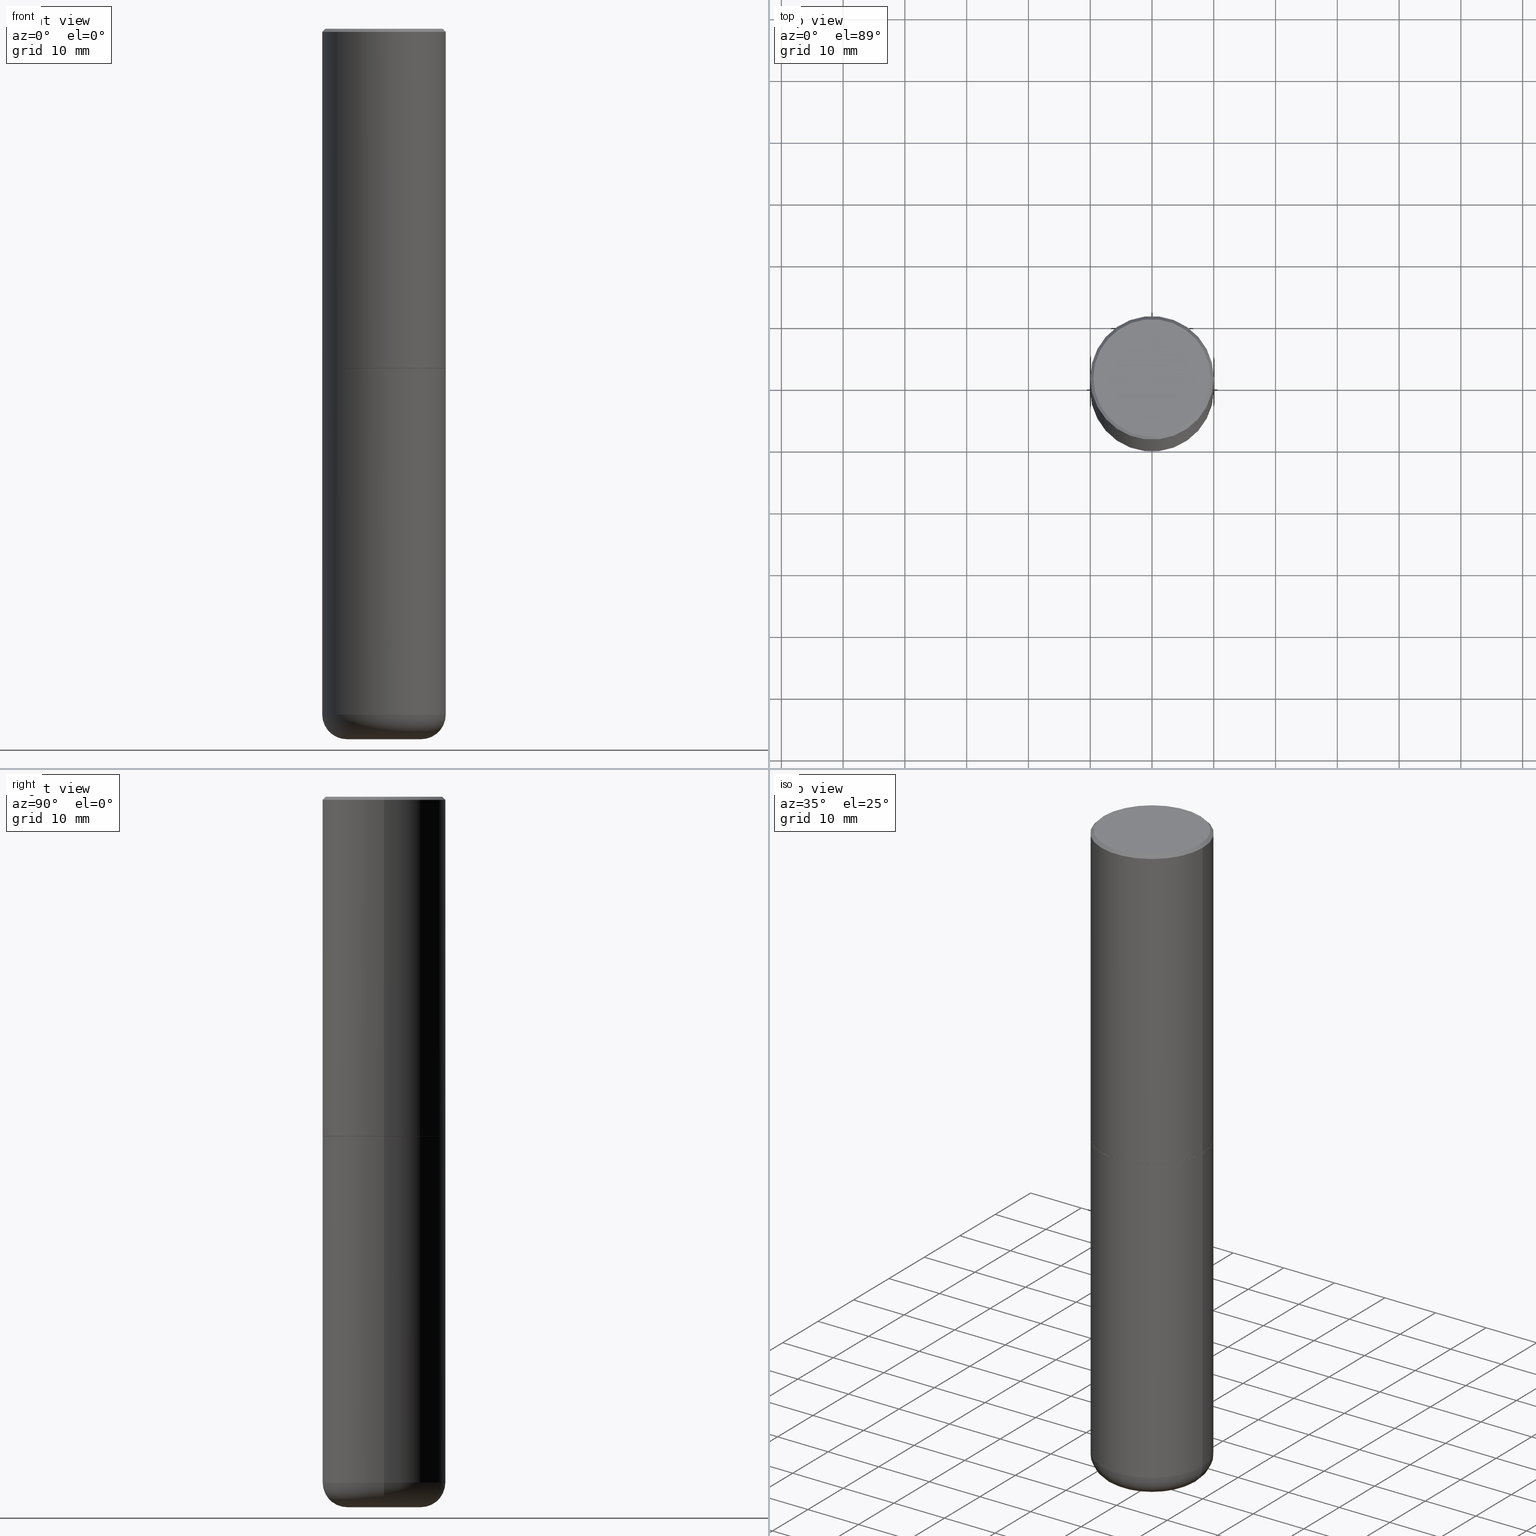
[diagram: canonical four-view strip — front | top / right | iso, engineering-drawing reading convention]
A machine part, canonical four-view strip (front | top / right | iso — engineering-drawing reading convention). The complete STEP part file that produces these views, byte-faithful:
ISO-10303-21;
HEADER;
FILE_DESCRIPTION (( 'STEP AP203' ),
    '1' );
FILE_NAME ('74838.STEP',
    '2024-05-02T19:22:48',
    ( '' ),
    ( '' ),
    'SwSTEP 2.0',
    'SolidWorks 2023',
    '' );
FILE_SCHEMA (( 'CONFIG_CONTROL_DESIGN' ));
ENDSEC;

DATA;
#1 = ORIENTED_EDGE ( 'NONE', *, *, #162, .F. ) ;
#2 = VECTOR ( 'NONE', #296, 39.37007874015748143 ) ;
#3 = DATE_AND_TIME ( #390, #241 ) ;
#4 = EDGE_LOOP ( 'NONE', ( #356, #287 ) ) ;
#5 = DIRECTION ( 'NONE',  ( 1.000000000000000000, 0.000000000000000000, 0.000000000000000000 ) ) ;
#6 = FACE_OUTER_BOUND ( 'NONE', #60, .T. ) ;
#7 = CARTESIAN_POINT ( 'NONE',  ( 0.2362000000000000210, -1.690749838334792550E-14, -4.370099999999998985 ) ) ;
#8 = AXIS2_PLACEMENT_3D ( 'NONE', #49, #311, #317 ) ;
#9 = PERSON_AND_ORGANIZATION ( #310, #116 ) ;
#10 = ADVANCED_FACE ( 'NONE', ( #78 ), #313, .F. ) ;
#11 = FACE_OUTER_BOUND ( 'NONE', #188, .T. ) ;
#12 = PERSON_AND_ORGANIZATION_ROLE ( 'classification_officer' ) ;
#13 = ORIENTED_EDGE ( 'NONE', *, *, #361, .F. ) ;
#14 = VERTEX_POINT ( 'NONE', #347 ) ;
#15 = PRODUCT ( '74838', '74838', '', ( #40 ) ) ;
#16 = CARTESIAN_POINT ( 'NONE',  ( 0.000000000000000000, 0.000000000000000000, 0.000000000000000000 ) ) ;
#17 = EDGE_CURVE ( 'NONE', #219, #58, #332, .T. ) ;
#18 = DIRECTION ( 'NONE',  ( -2.445468806185136597E-29, 3.491481338843145583E-15, 1.000000000000000000 ) ) ;
#19 = EDGE_CURVE ( 'NONE', #394, #121, #319, .T. ) ;
#20 =( LENGTH_UNIT ( ) NAMED_UNIT ( * ) SI_UNIT ( $, .METRE. ) );
#21 = CIRCLE ( 'NONE', #252, 0.3937000000000000499 ) ;
#22 = LOCAL_TIME ( 15, 22, 48.00000000000000000, #304 ) ;
#23 = DIRECTION ( 'NONE',  ( -2.445468806185136597E-29, 3.491481338843145583E-15, 1.000000000000000000 ) ) ;
#24 = DIRECTION ( 'NONE',  ( -1.000000000000000000, 6.982962677686265922E-15, -4.876176775795935793E-29 ) ) ;
#25 = EDGE_CURVE ( 'NONE', #201, #154, #379, .T. ) ;
#26 = DIRECTION ( 'NONE',  ( 2.445468806185136597E-29, -3.491481338843145583E-15, -1.000000000000000000 ) ) ;
#27 = CIRCLE ( 'NONE', #351, 0.3937000000000001054 ) ;
#28 = APPROVAL_PERSON_ORGANIZATION ( #309, #408, #273 ) ;
#29 = CARTESIAN_POINT ( 'NONE',  ( 4.890937612370294178E-31, -6.982962677686321191E-17, -0.02000000000000008715 ) ) ;
#30 = ORIENTED_EDGE ( 'NONE', *, *, #371, .F. ) ;
#31 = ORIENTED_EDGE ( 'NONE', *, *, #260, .F. ) ;
#32 = VERTEX_POINT ( 'NONE', #114 ) ;
#33 = AXIS2_PLACEMENT_3D ( 'NONE', #398, #303, #106 ) ;
#34 = ORIENTED_EDGE ( 'NONE', *, *, #361, .T. ) ;
#35 = DIRECTION ( 'NONE',  ( -1.000000000000000000, 6.982962677686265922E-15, -4.876176775795935793E-29 ) ) ;
#36 = DATE_AND_TIME ( #38, #220 ) ;
#37 = AXIS2_PLACEMENT_3D ( 'NONE', #155, #89, #5 ) ;
#38 = CALENDAR_DATE ( 2024, 2, 5 ) ;
#39 = EDGE_CURVE ( 'NONE', #154, #201, #388, .T. ) ;
#40 = MECHANICAL_CONTEXT ( 'NONE', #295, 'mechanical' ) ;
#41 = FACE_OUTER_BOUND ( 'NONE', #324, .T. ) ;
#42 = DIRECTION ( 'NONE',  ( 1.000000000000000000, -6.982962677686266711E-15, 4.876176775795935793E-29 ) ) ;
#43 = CC_DESIGN_APPROVAL ( #349, ( #340 ) ) ;
#44 = PLANE ( 'NONE',  #405 ) ;
#45 = DIRECTION ( 'NONE',  ( -2.445468806185136597E-29, 3.491481338843145583E-15, 1.000000000000000000 ) ) ;
#46 = EDGE_CURVE ( 'NONE', #121, #395, #27, .T. ) ;
#47 = DIRECTION ( 'NONE',  ( 1.000000000000000000, -6.982962677686266711E-15, 4.876176775795935793E-29 ) ) ;
#48 = ORIENTED_EDGE ( 'NONE', *, *, #17, .T. ) ;
#49 = CARTESIAN_POINT ( 'NONE',  ( 0.000000000000000000, 0.000000000000000000, 0.000000000000000000 ) ) ;
#50 = EDGE_CURVE ( 'NONE', #125, #14, #316, .T. ) ;
#51 = DIRECTION ( 'NONE',  ( 2.438088387897960049E-29, -3.491481338843145188E-15, -1.000000000000000000 ) ) ;
#52 = DIRECTION ( 'NONE',  ( 2.445468806185136597E-29, -3.491481338843145583E-15, -1.000000000000000000 ) ) ;
#53 = AXIS2_PLACEMENT_3D ( 'NONE', #342, #343, #24 ) ;
#54 = AXIS2_PLACEMENT_3D ( 'NONE', #254, #146, #247 ) ;
#55 = LINE ( 'NONE', #118, #352 ) ;
#56 = VERTEX_POINT ( 'NONE', #345 ) ;
#57 = DIRECTION ( 'NONE',  ( -2.445468806185136597E-29, 3.491481338843145583E-15, 1.000000000000000000 ) ) ;
#58 = VERTEX_POINT ( 'NONE', #237 ) ;
#59 = CC_DESIGN_DATE_AND_TIME_ASSIGNMENT ( #166, #306, ( #145 ) ) ;
#60 = EDGE_LOOP ( 'NONE', ( #119, #258, #31, #150 ) ) ;
#61 = FACE_OUTER_BOUND ( 'NONE', #290, .T. ) ;
#62 = EDGE_LOOP ( 'NONE', ( #266, #294, #354, #95 ) ) ;
#63 = PERSON_AND_ORGANIZATION_ROLE ( 'creator' ) ;
#64 = ORIENTED_EDGE ( 'NONE', *, *, #229, .T. ) ;
#65 = CONICAL_SURFACE ( 'NONE', #314, 0.3937000000000001054, 0.7853981633974453924 ) ;
#66 = ADVANCED_FACE ( 'NONE', ( #109 ), #401, .T. ) ;
#67 = DIRECTION ( 'NONE',  ( -2.445468806185136597E-29, 3.491481338843145583E-15, 1.000000000000000000 ) ) ;
#68 = CC_DESIGN_SECURITY_CLASSIFICATION ( #145, ( #279 ) ) ;
#69 = CARTESIAN_POINT ( 'NONE',  ( 5.295418152913293224E-29, -7.560453691130945845E-15, -2.165399999999999547 ) ) ;
#70 = ORIENTED_EDGE ( 'NONE', *, *, #281, .T. ) ;
#71 = PERSON_AND_ORGANIZATION ( #310, #116 ) ;
#72 =( NAMED_UNIT ( * ) SI_UNIT ( $, .STERADIAN. ) SOLID_ANGLE_UNIT ( ) );
#73 = CYLINDRICAL_SURFACE ( 'NONE', #293, 0.3937000000000001054 ) ;
#74 = DIRECTION ( 'NONE',  ( -2.445468806185136597E-29, 3.491481338843145583E-15, 1.000000000000000000 ) ) ;
#75 = LOCAL_TIME ( 15, 22, 48.00000000000000000, #265 ) ;
#76 = EDGE_CURVE ( 'NONE', #14, #191, #239, .T. ) ;
#77 = DIRECTION ( 'NONE',  ( -2.445468806185136597E-29, 3.491481338843145583E-15, 1.000000000000000000 ) ) ;
#78 = FACE_OUTER_BOUND ( 'NONE', #4, .T. ) ;
#79 = DIRECTION ( 'NONE',  ( 1.000000000000000000, -6.982962677686266711E-15, 0.000000000000000000 ) ) ;
#80 = VECTOR ( 'NONE', #96, 39.37007874015748143 ) ;
#81 = TOROIDAL_SURFACE ( 'NONE', #327, 0.2362000000000000210, 0.1575000000000000844 ) ;
#82 = CARTESIAN_POINT ( 'NONE',  ( 4.890937612370294178E-31, -6.982962677686321191E-17, -0.02000000000000008715 ) ) ;
#83 = DIRECTION ( 'NONE',  ( 1.000000000000000000, -6.982962677686268288E-15, 0.000000000000000000 ) ) ;
#84 = ORIENTED_EDGE ( 'NONE', *, *, #19, .F. ) ;
#85 = APPROVAL_PERSON_ORGANIZATION ( #261, #349, #399 ) ;
#86 = ADVANCED_FACE ( 'NONE', ( #138 ), #367, .F. ) ;
#87 = DIRECTION ( 'NONE',  ( -1.000000000000000000, 6.982962677686266711E-15, 0.000000000000000000 ) ) ;
#88 = EDGE_LOOP ( 'NONE', ( #325, #267, #328, #216 ) ) ;
#89 = DIRECTION ( 'NONE',  ( 0.000000000000000000, 0.000000000000000000, 1.000000000000000000 ) ) ;
#90 = DIRECTION ( 'NONE',  ( 1.000000000000000000, -6.982962677686261977E-15, 4.883557194083110659E-29 ) ) ;
#91 = EDGE_LOOP ( 'NONE', ( #377, #1 ) ) ;
#92 = COORDINATED_UNIVERSAL_TIME_OFFSET ( 5, 0, .BEHIND. ) ;
#93 = ADVANCED_BREP_SHAPE_REPRESENTATION ( '74838', ( #110, #206, #37 ), #193 ) ;
#94 = DIRECTION ( 'NONE',  ( -1.000000000000000000, 6.982962677686266711E-15, 0.000000000000000000 ) ) ;
#95 = ORIENTED_EDGE ( 'NONE', *, *, #50, .F. ) ;
#96 = DIRECTION ( 'NONE',  ( -0.7071067811866199593, 7.493145998870616062E-15, 0.7071067811864750752 ) ) ;
#97 = APPROVAL_PERSON_ORGANIZATION ( #160, #232, #107 ) ;
#98 = DIRECTION ( 'NONE',  ( -2.445468806185136597E-29, 3.491481338843145583E-15, 1.000000000000000000 ) ) ;
#99 = PERSON_AND_ORGANIZATION ( #310, #116 ) ;
#100 = DIRECTION ( 'NONE',  ( 2.438088387897960049E-29, -3.491481338843145188E-15, -1.000000000000000000 ) ) ;
#101 = ORIENTED_EDGE ( 'NONE', *, *, #282, .F. ) ;
#102 = VECTOR ( 'NONE', #278, 39.37007874015748143 ) ;
#103 = APPROVAL_DATE_TIME ( #396, #408 ) ;
#104 = AXIS2_PLACEMENT_3D ( 'NONE', #415, #57, #348 ) ;
#105 =( NAMED_UNIT ( * ) PLANE_ANGLE_UNIT ( ) SI_UNIT ( $, .RADIAN. ) );
#106 = DIRECTION ( 'NONE',  ( 1.000000000000000000, -6.982962677686266711E-15, 0.000000000000000000 ) ) ;
#107 = APPROVAL_ROLE ( '' ) ;
#108 = LINE ( 'NONE', #175, #374 ) ;
#109 = FACE_OUTER_BOUND ( 'NONE', #285, .T. ) ;
#110 = MANIFOLD_SOLID_BREP ( 'Body-Move/Copy2[1]', #270 ) ;
#111 = AXIS2_PLACEMENT_3D ( 'NONE', #221, #257, #83 ) ;
#112 = CARTESIAN_POINT ( 'NONE',  ( 0.3926999999999999935, -1.030266313465834305E-14, -2.165399999999999547 ) ) ;
#113 = EDGE_CURVE ( 'NONE', #56, #32, #21, .T. ) ;
#114 = CARTESIAN_POINT ( 'NONE',  ( 0.3937000000000000499, -1.030964609733602906E-14, -2.165399999999999547 ) ) ;
#115 = CARTESIAN_POINT ( 'NONE',  ( 5.295418152913293224E-29, -7.560453691130945845E-15, -2.165399999999999547 ) ) ;
#116 = ORGANIZATION ( 'UNSPECIFIED', 'UNSPECIFIED', '' ) ;
#117 = DIRECTION ( 'NONE',  ( 1.000000000000000000, -6.982962677686265133E-15, 0.000000000000000000 ) ) ;
#118 = CARTESIAN_POINT ( 'NONE',  ( -0.3937000000000001054, 2.679362779428220707E-15, -0.02000000000000008715 ) ) ;
#119 = ORIENTED_EDGE ( 'NONE', *, *, #298, .T. ) ;
#120 = ADVANCED_FACE ( 'NONE', ( #375 ), #280, .T. ) ;
#121 = VERTEX_POINT ( 'NONE', #176 ) ;
#122 = CONICAL_SURFACE ( 'NONE', #291, 0.3926999999999999935, 0.7853981633975507526 ) ;
#123 = TOROIDAL_SURFACE ( 'NONE', #272, 0.2362000000000000210, 0.1575000000000000844 ) ;
#124 = CARTESIAN_POINT ( 'NONE',  ( 1.068694322990966450E-28, -1.525812259887842897E-14, -4.370099999999998985 ) ) ;
#125 = VERTEX_POINT ( 'NONE', #283 ) ;
#126 = ADVANCED_FACE ( 'NONE', ( #142 ), #122, .T. ) ;
#127 = ORIENTED_EDGE ( 'NONE', *, *, #39, .F. ) ;
#128 = EDGE_CURVE ( 'NONE', #14, #219, #139, .T. ) ;
#129 = LINE ( 'NONE', #387, #80 ) ;
#130 = PERSON_AND_ORGANIZATION_ROLE ( 'design_owner' ) ;
#131 = VECTOR ( 'NONE', #312, 39.37007874015748143 ) ;
#132 = CIRCLE ( 'NONE', #104, 0.3926999999999999935 ) ;
#133 = EDGE_LOOP ( 'NONE', ( #127, #161, #48, #151 ) ) ;
#134 = EDGE_LOOP ( 'NONE', ( #382, #336, #301, #13 ) ) ;
#135 = CARTESIAN_POINT ( 'NONE',  ( 1.068694322990966450E-28, -1.525812259887842897E-14, -4.370099999999998985 ) ) ;
#136 = CALENDAR_DATE ( 2024, 2, 5 ) ;
#137 = DIRECTION ( 'NONE',  ( 1.000000000000000000, -6.982962677686266711E-15, 4.877734241229876808E-29 ) ) ;
#138 = FACE_OUTER_BOUND ( 'NONE', #373, .T. ) ;
#139 = LINE ( 'NONE', #245, #102 ) ;
#140 = CONICAL_SURFACE ( 'NONE', #320, 0.3937000000000001054, 0.7853981633974453924 ) ;
#141 = CARTESIAN_POINT ( 'NONE',  ( 5.295418152913293224E-29, -7.560453691130945845E-15, -2.165399999999999547 ) ) ;
#142 = FACE_OUTER_BOUND ( 'NONE', #418, .T. ) ;
#143 = CARTESIAN_POINT ( 'NONE',  ( 0.3937000000000001054, -2.749192406205084005E-15, 1.919750796630860452E-29 ) ) ;
#144 = AXIS2_PLACEMENT_3D ( 'NONE', #82, #23, #79 ) ;
#145 = SECURITY_CLASSIFICATION ( '', '', #170 ) ;
#146 = DIRECTION ( 'NONE',  ( -2.445468806185136597E-29, 3.491481338843145583E-15, 1.000000000000000000 ) ) ;
#147 = ORIENTED_EDGE ( 'NONE', *, *, #50, .T. ) ;
#148 = ADVANCED_FACE ( 'NONE', ( #406 ), #262, .T. ) ;
#149 = CARTESIAN_POINT ( 'NONE',  ( -0.3937000000000002720, -1.015989167596965718E-15, -2.164399999999999658 ) ) ;
#150 = ORIENTED_EDGE ( 'NONE', *, *, #281, .F. ) ;
#151 = ORIENTED_EDGE ( 'NONE', *, *, #229, .F. ) ;
#152 = AXIS2_PLACEMENT_3D ( 'NONE', #223, #417, #355 ) ;
#153 = CARTESIAN_POINT ( 'NONE',  ( 1.107210456688382298E-28, -1.580803090974622389E-14, -4.527599999999999625 ) ) ;
#154 = VERTEX_POINT ( 'NONE', #381 ) ;
#155 = CARTESIAN_POINT ( 'NONE',  ( 0.000000000000000000, 0.000000000000000000, 0.000000000000000000 ) ) ;
#156 = EDGE_LOOP ( 'NONE', ( #84, #227, #70, #251 ) ) ;
#157 = DESIGN_CONTEXT ( 'detailed design', #236, 'design' ) ;
#158 = DATE_TIME_ROLE ( 'creation_date' ) ;
#159 = CIRCLE ( 'NONE', #369, 0.1575000000000000566 ) ;
#160 = PERSON_AND_ORGANIZATION ( #310, #116 ) ;
#161 = ORIENTED_EDGE ( 'NONE', *, *, #302, .T. ) ;
#162 = EDGE_CURVE ( 'NONE', #394, #186, #397, .T. ) ;
#163 = DIRECTION ( 'NONE',  ( 1.000000000000000000, -6.982962677686266711E-15, 4.876176775795935793E-29 ) ) ;
#164 = APPROVAL_STATUS ( 'not_yet_approved' ) ;
#165 = DIRECTION ( 'NONE',  ( -6.982962677686266711E-15, -1.000000000000000000, 3.491481338843145583E-15 ) ) ;
#166 = DATE_AND_TIME ( #136, #22 ) ;
#167 = EDGE_CURVE ( 'NONE', #191, #14, #360, .T. ) ;
#168 = CARTESIAN_POINT ( 'NONE',  ( -0.2362000000000000766, -1.329522240803589203E-14, -4.527599999999999625 ) ) ;
#169 = AXIS2_PLACEMENT_3D ( 'NONE', #318, #413, #117 ) ;
#170 = SECURITY_CLASSIFICATION_LEVEL ( 'unclassified' ) ;
#171 = CARTESIAN_POINT ( 'NONE',  ( -0.3926999999999999935, -4.764853913452808876E-15, -2.165399999999999547 ) ) ;
#172 = DIRECTION ( 'NONE',  ( -1.000000000000000000, 7.105427357601006592E-15, 0.000000000000000000 ) ) ;
#173 = LENGTH_MEASURE_WITH_UNIT ( LENGTH_MEASURE( 0.02539999999999999897 ), #20 );
#174 = DIRECTION ( 'NONE',  ( -1.000000000000000000, 6.982962677686265922E-15, -4.876176775795935793E-29 ) ) ;
#175 = CARTESIAN_POINT ( 'NONE',  ( -0.3937000000000002164, 2.797406750687515970E-15, -1.936584745033357576E-29 ) ) ;
#176 = CARTESIAN_POINT ( 'NONE',  ( -0.3937000000000001054, -1.246071584819091497E-14, -4.370099999999998985 ) ) ;
#177 = AXIS2_PLACEMENT_3D ( 'NONE', #209, #409, #172 ) ;
#178 = VECTOR ( 'NONE', #284, 39.37007874015748143 ) ;
#179 = DIRECTION ( 'NONE',  ( 1.000000000000000000, -6.982962677686265133E-15, 0.000000000000000000 ) ) ;
#180 = ADVANCED_FACE ( 'NONE', ( #61 ), #65, .T. ) ;
#181 = CARTESIAN_POINT ( 'NONE',  ( 1.068694322990966450E-28, -1.525812259887842897E-14, -4.370099999999998985 ) ) ;
#182 = EDGE_CURVE ( 'NONE', #416, #125, #389, .T. ) ;
#183 = AXIS2_PLACEMENT_3D ( 'NONE', #411, #372, #274 ) ;
#184 = CIRCLE ( 'NONE', #210, 0.2362000000000000766 ) ;
#185 = DIRECTION ( 'NONE',  ( -0.7071067811865454633, 2.468850131082235367E-15, -0.7071067811865495711 ) ) ;
#186 = VERTEX_POINT ( 'NONE', #250 ) ;
#187 = FACE_OUTER_BOUND ( 'NONE', #133, .T. ) ;
#188 = EDGE_LOOP ( 'NONE', ( #101, #350, #255, #230 ) ) ;
#189 = PERSON_AND_ORGANIZATION ( #310, #116 ) ;
#190 = DIRECTION ( 'NONE',  ( 1.000000000000000000, -6.982962677686262766E-15, 0.000000000000000000 ) ) ;
#191 = VERTEX_POINT ( 'NONE', #149 ) ;
#192 = COORDINATED_UNIVERSAL_TIME_OFFSET ( 5, 0, .BEHIND. ) ;
#193 =( GEOMETRIC_REPRESENTATION_CONTEXT ( 3 ) GLOBAL_UNCERTAINTY_ASSIGNED_CONTEXT ( ( #288 ) ) GLOBAL_UNIT_ASSIGNED_CONTEXT ( ( #407, #105, #72 ) ) REPRESENTATION_CONTEXT ( 'NONE', 'WORKASPACE' ) );
#194 = ORIENTED_EDGE ( 'NONE', *, *, #182, .T. ) ;
#195 = ADVANCED_FACE ( 'NONE', ( #187 ), #140, .T. ) ;
#196 = DIRECTION ( 'NONE',  ( -2.445468806185136597E-29, 3.491481338843145583E-15, 1.000000000000000000 ) ) ;
#197 = DIRECTION ( 'NONE',  ( 0.7071067811865454633, -7.319954787623248157E-15, -0.7071067811865495711 ) ) ;
#198 = ADVANCED_FACE ( 'NONE', ( #353 ), #123, .T. ) ;
#199 = DIRECTION ( 'NONE',  ( 1.000000000000000000, -6.982962677686262766E-15, 0.000000000000000000 ) ) ;
#200 = CC_DESIGN_APPROVAL ( #232, ( #279 ) ) ;
#201 = VERTEX_POINT ( 'NONE', #218 ) ;
#202 = LINE ( 'NONE', #271, #231 ) ;
#203 = EDGE_CURVE ( 'NONE', #125, #416, #132, .T. ) ;
#204 = EDGE_CURVE ( 'NONE', #395, #32, #226, .T. ) ;
#205 = DIRECTION ( 'NONE',  ( -2.445468806185136877E-29, 3.491481338843145188E-15, 1.000000000000000000 ) ) ;
#206 = MANIFOLD_SOLID_BREP ( 'Body-Move/Copy2[2]', #338 ) ;
#207 = DIRECTION ( 'NONE',  ( -2.445468806185136597E-29, 3.491481338843145583E-15, 1.000000000000000000 ) ) ;
#208 = AXIS2_PLACEMENT_3D ( 'NONE', #244, #77, #341 ) ;
#209 = CARTESIAN_POINT ( 'NONE',  ( -0.2362000000000000210, -1.357982065701307100E-14, -4.370099999999998985 ) ) ;
#210 = AXIS2_PLACEMENT_3D ( 'NONE', #330, #67, #199 ) ;
#211 = CARTESIAN_POINT ( 'NONE',  ( 5.295418152913293224E-29, -7.560453691130945845E-15, -2.165399999999999547 ) ) ;
#212 = CARTESIAN_POINT ( 'NONE',  ( 0.000000000000000000, 0.000000000000000000, 0.000000000000000000 ) ) ;
#213 = CC_DESIGN_PERSON_AND_ORGANIZATION_ASSIGNMENT ( #99, #299, ( #279 ) ) ;
#214 = DIRECTION ( 'NONE',  ( -2.445468806185136597E-29, 3.491481338843145583E-15, 1.000000000000000000 ) ) ;
#215 = AXIS2_PLACEMENT_3D ( 'NONE', #153, #358, #190 ) ;
#216 = ORIENTED_EDGE ( 'NONE', *, *, #128, .F. ) ;
#217 = EDGE_CURVE ( 'NONE', #32, #56, #380, .T. ) ;
#218 = CARTESIAN_POINT ( 'NONE',  ( -0.3736999999999999211, 2.644447966039789453E-15, 2.262311619753034352E-16 ) ) ;
#219 = VERTEX_POINT ( 'NONE', #376 ) ;
#220 = LOCAL_TIME ( 15, 22, 48.00000000000000000, #192 ) ;
#221 = CARTESIAN_POINT ( 'NONE',  ( 5.295418152913293224E-29, -7.560453691130945845E-15, -2.165399999999999547 ) ) ;
#222 = ORIENTED_EDGE ( 'NONE', *, *, #25, .F. ) ;
#223 = CARTESIAN_POINT ( 'NONE',  ( 5.292972684107107621E-29, -7.556962209792102838E-15, -2.164399999999999658 ) ) ;
#224 = ORIENTED_EDGE ( 'NONE', *, *, #260, .T. ) ;
#225 = PERSON_AND_ORGANIZATION ( #310, #116 ) ;
#226 = LINE ( 'NONE', #143, #178 ) ;
#227 = ORIENTED_EDGE ( 'NONE', *, *, #162, .T. ) ;
#228 = FACE_OUTER_BOUND ( 'NONE', #88, .T. ) ;
#229 = EDGE_CURVE ( 'NONE', #201, #58, #55, .T. ) ;
#230 = ORIENTED_EDGE ( 'NONE', *, *, #113, .F. ) ;
#231 = VECTOR ( 'NONE', #197, 39.37007874015748143 ) ;
#232 = APPROVAL ( #164, 'UNSPECIFIED' ) ;
#233 = DIRECTION ( 'NONE',  ( -2.438088387897960049E-29, 3.491481338843145188E-15, 1.000000000000000000 ) ) ;
#234 = CARTESIAN_POINT ( 'NONE',  ( -0.3937000000000001054, 2.797406750687515181E-15, -1.936584745033357016E-29 ) ) ;
#235 = DATE_AND_TIME ( #402, #339 ) ;
#236 = APPLICATION_CONTEXT ( 'configuration controlled 3d designs of mechanical parts and assemblies' ) ;
#237 = CARTESIAN_POINT ( 'NONE',  ( -0.3937000000000001054, 2.679362779428220707E-15, -0.02000000000000008715 ) ) ;
#238 = DIRECTION ( 'NONE',  ( 1.000000000000000000, -6.982962677686265922E-15, 4.876176775795935793E-29 ) ) ;
#239 = CIRCLE ( 'NONE', #183, 0.3937000000000002720 ) ;
#240 = DIRECTION ( 'NONE',  ( 1.000000000000000000, -6.982962677686268288E-15, 0.000000000000000000 ) ) ;
#241 = LOCAL_TIME ( 15, 22, 48.00000000000000000, #92 ) ;
#242 = CC_DESIGN_PERSON_AND_ORGANIZATION_ASSIGNMENT ( #9, #12, ( #145 ) ) ;
#243 = DIRECTION ( 'NONE',  ( 1.000000000000000000, -6.982962677686261977E-15, 0.000000000000000000 ) ) ;
#244 = CARTESIAN_POINT ( 'NONE',  ( -5.532412495976664402E-45, 7.898818803016371119E-31, 2.262311619753217762E-16 ) ) ;
#245 = CARTESIAN_POINT ( 'NONE',  ( 0.3937000000000002164, -2.749192406205084794E-15, 1.919750796630861012E-29 ) ) ;
#246 = ADVANCED_FACE ( 'NONE', ( #286 ), #248, .T. ) ;
#247 = DIRECTION ( 'NONE',  ( 1.000000000000000000, -6.982962677686268288E-15, 0.000000000000000000 ) ) ;
#248 = PLANE ( 'NONE',  #346 ) ;
#249 = ORIENTED_EDGE ( 'NONE', *, *, #167, .F. ) ;
#250 = CARTESIAN_POINT ( 'NONE',  ( 0.2362000000000000766, -1.745740669421572042E-14, -4.527599999999999625 ) ) ;
#251 = ORIENTED_EDGE ( 'NONE', *, *, #46, .F. ) ;
#252 = AXIS2_PLACEMENT_3D ( 'NONE', #141, #18, #179 ) ;
#253 = CC_DESIGN_APPROVAL ( #408, ( #145 ) ) ;
#254 = CARTESIAN_POINT ( 'NONE',  ( 5.295418152913293224E-29, -7.560453691130945845E-15, -2.165399999999999547 ) ) ;
#255 = ORIENTED_EDGE ( 'NONE', *, *, #204, .T. ) ;
#256 = APPROVAL_DATE_TIME ( #3, #349 ) ;
#257 = DIRECTION ( 'NONE',  ( -2.445468806185136597E-29, 3.491481338843145583E-15, 1.000000000000000000 ) ) ;
#258 = ORIENTED_EDGE ( 'NONE', *, *, #19, .T. ) ;
#259 = DIRECTION ( 'NONE',  ( -2.445468806185136597E-29, 3.491481338843145583E-15, 1.000000000000000000 ) ) ;
#260 = EDGE_CURVE ( 'NONE', #395, #121, #307, .T. ) ;
#261 = PERSON_AND_ORGANIZATION ( #310, #116 ) ;
#262 = CONICAL_SURFACE ( 'NONE', #54, 0.3926999999999999935, 0.7853981633975507526 ) ;
#263 = DIRECTION ( 'NONE',  ( 1.000000000000000000, -6.982962677686259611E-15, 0.000000000000000000 ) ) ;
#264 = CARTESIAN_POINT ( 'NONE',  ( 0.000000000000000000, 0.000000000000000000, 0.000000000000000000 ) ) ;
#265 = COORDINATED_UNIVERSAL_TIME_OFFSET ( 5, 0, .BEHIND. ) ;
#266 = ORIENTED_EDGE ( 'NONE', *, *, #203, .T. ) ;
#267 = ORIENTED_EDGE ( 'NONE', *, *, #410, .T. ) ;
#268 = DIRECTION ( 'NONE',  ( 1.000000000000000000, -6.982962677686261977E-15, 4.883557194083110659E-29 ) ) ;
#269 = APPROVAL_STATUS ( 'not_yet_approved' ) ;
#270 = CLOSED_SHELL ( 'NONE', ( #66, #366, #10, #357, #198, #246 ) ) ;
#271 = CARTESIAN_POINT ( 'NONE',  ( 0.3937000000000001054, -2.770807688499516128E-15, -0.02000000000000008715 ) ) ;
#272 = AXIS2_PLACEMENT_3D ( 'NONE', #124, #323, #90 ) ;
#273 = APPROVAL_ROLE ( '' ) ;
#274 = DIRECTION ( 'NONE',  ( 1.000000000000000000, -6.982962677686269077E-15, 0.000000000000000000 ) ) ;
#275 = ORIENTED_EDGE ( 'NONE', *, *, #39, .T. ) ;
#276 = CC_DESIGN_PERSON_AND_ORGANIZATION_ASSIGNMENT ( #225, #63, ( #340 ) ) ;
#277 = ORIENTED_EDGE ( 'NONE', *, *, #182, .F. ) ;
#278 = DIRECTION ( 'NONE',  ( -2.445468806185136877E-29, 3.491481338843145188E-15, 1.000000000000000000 ) ) ;
#279 = PRODUCT_DEFINITION_FORMATION_WITH_SPECIFIED_SOURCE ( 'ANY', '', #15, .NOT_KNOWN. ) ;
#280 = CYLINDRICAL_SURFACE ( 'NONE', #326, 0.3937000000000002164 ) ;
#281 = EDGE_CURVE ( 'NONE', #186, #395, #159, .T. ) ;
#282 = EDGE_CURVE ( 'NONE', #121, #56, #305, .T. ) ;
#283 = CARTESIAN_POINT ( 'NONE',  ( 0.3926999999999999935, -1.030266313465834305E-14, -2.165399999999999547 ) ) ;
#284 = DIRECTION ( 'NONE',  ( -2.445468806185136877E-29, 3.491481338843145188E-15, 1.000000000000000000 ) ) ;
#285 = EDGE_LOOP ( 'NONE', ( #224, #297, #363, #359 ) ) ;
#286 = FACE_OUTER_BOUND ( 'NONE', #91, .T. ) ;
#287 = ORIENTED_EDGE ( 'NONE', *, *, #113, .T. ) ;
#288 = UNCERTAINTY_MEASURE_WITH_UNIT (LENGTH_MEASURE( 1.000000000000000082E-05 ), #407, 'distance_accuracy_value', 'NONE');
#289 = CC_DESIGN_PERSON_AND_ORGANIZATION_ASSIGNMENT ( #189, #130, ( #15 ) ) ;
#290 = EDGE_LOOP ( 'NONE', ( #378, #222, #64, #34 ) ) ;
#291 = AXIS2_PLACEMENT_3D ( 'NONE', #115, #403, #240 ) ;
#292 = APPLICATION_PROTOCOL_DEFINITION ( 'international standard', 'config_control_design', 1994, #236 ) ;
#293 = AXIS2_PLACEMENT_3D ( 'NONE', #264, #98, #163 ) ;
#294 = ORIENTED_EDGE ( 'NONE', *, *, #371, .T. ) ;
#295 = APPLICATION_CONTEXT ( 'configuration controlled 3d designs of mechanical parts and assemblies' ) ;
#296 = DIRECTION ( 'NONE',  ( -2.445468806185136877E-29, 3.491481338843145188E-15, 1.000000000000000000 ) ) ;
#297 = ORIENTED_EDGE ( 'NONE', *, *, #282, .T. ) ;
#298 = EDGE_CURVE ( 'NONE', #186, #394, #184, .T. ) ;
#299 = PERSON_AND_ORGANIZATION_ROLE ( 'design_supplier' ) ;
#300 = APPROVAL_DATE_TIME ( #235, #232 ) ;
#301 = ORIENTED_EDGE ( 'NONE', *, *, #128, .T. ) ;
#302 = EDGE_CURVE ( 'NONE', #154, #219, #202, .T. ) ;
#303 = DIRECTION ( 'NONE',  ( -2.445468806185136597E-29, 3.491481338843145583E-15, 1.000000000000000000 ) ) ;
#304 = COORDINATED_UNIVERSAL_TIME_OFFSET ( 5, 0, .BEHIND. ) ;
#305 = LINE ( 'NONE', #234, #2 ) ;
#306 = DATE_TIME_ROLE ( 'classification_date' ) ;
#307 = CIRCLE ( 'NONE', #362, 0.3937000000000001054 ) ;
#308 = CARTESIAN_POINT ( 'NONE',  ( 0.3937000000000001054, -1.800731500508351219E-14, -4.370099999999998985 ) ) ;
#309 = PERSON_AND_ORGANIZATION ( #310, #116 ) ;
#310 = PERSON ( 'UNSPECIFIED', 'UNSPECIFIED', 'UNSPECIFIED', ('UNSPECIFIED'), ('UNSPECIFIED'), ('UNSPECIFIED') ) ;
#311 = DIRECTION ( 'NONE',  ( -2.445468806185136597E-29, 3.491481338843145583E-15, 1.000000000000000000 ) ) ;
#312 = DIRECTION ( 'NONE',  ( 0.7071067811866199593, -2.468850131083015945E-15, 0.7071067811864750752 ) ) ;
#313 = PLANE ( 'NONE',  #404 ) ;
#314 = AXIS2_PLACEMENT_3D ( 'NONE', #29, #52, #87 ) ;
#315 = CC_DESIGN_DATE_AND_TIME_ASSIGNMENT ( #36, #158, ( #340 ) ) ;
#316 = LINE ( 'NONE', #112, #131 ) ;
#317 = DIRECTION ( 'NONE',  ( 1.000000000000000000, -6.982962677686266711E-15, 4.876176775795935793E-29 ) ) ;
#318 = CARTESIAN_POINT ( 'NONE',  ( 5.295418152913293224E-29, -7.560453691130945845E-15, -2.165399999999999547 ) ) ;
#319 = CIRCLE ( 'NONE', #177, 0.1575000000000000566 ) ;
#320 = AXIS2_PLACEMENT_3D ( 'NONE', #385, #26, #94 ) ;
#321 = ORIENTED_EDGE ( 'NONE', *, *, #25, .T. ) ;
#322 = CC_DESIGN_PERSON_AND_ORGANIZATION_ASSIGNMENT ( #71, #365, ( #279 ) ) ;
#323 = DIRECTION ( 'NONE',  ( -2.445468806185136597E-29, 3.491481338843145583E-15, 1.000000000000000000 ) ) ;
#324 = EDGE_LOOP ( 'NONE', ( #386, #277 ) ) ;
#325 = ORIENTED_EDGE ( 'NONE', *, *, #76, .T. ) ;
#326 = AXIS2_PLACEMENT_3D ( 'NONE', #212, #45, #47 ) ;
#327 = AXIS2_PLACEMENT_3D ( 'NONE', #135, #259, #268 ) ;
#328 = ORIENTED_EDGE ( 'NONE', *, *, #17, .F. ) ;
#329 = APPLICATION_PROTOCOL_DEFINITION ( 'international standard', 'config_control_design', 1994, #295 ) ;
#330 = CARTESIAN_POINT ( 'NONE',  ( 1.107210456688382298E-28, -1.580803090974622389E-14, -4.527599999999999625 ) ) ;
#331 = CARTESIAN_POINT ( 'NONE',  ( 1.068694322990966450E-28, -1.525812259887842897E-14, -4.370099999999998985 ) ) ;
#332 = CIRCLE ( 'NONE', #144, 0.3937000000000001054 ) ;
#333 = AXIS2_PLACEMENT_3D ( 'NONE', #16, #207, #42 ) ;
#334 = PRODUCT_DEFINITION_SHAPE ( 'NONE', 'NONE',  #340 ) ;
#335 = PRODUCT_RELATED_PRODUCT_CATEGORY ( 'detail', '', ( #15 ) ) ;
#336 = ORIENTED_EDGE ( 'NONE', *, *, #167, .T. ) ;
#337 = CYLINDRICAL_SURFACE ( 'NONE', #333, 0.3937000000000002164 ) ;
#338 = CLOSED_SHELL ( 'NONE', ( #148, #383, #195, #180, #120, #126, #414, #86 ) ) ;
#339 = LOCAL_TIME ( 15, 22, 48.00000000000000000, #400 ) ;
#340 = PRODUCT_DEFINITION ( 'UNKNOWN', '', #279, #157 ) ;
#341 = DIRECTION ( 'NONE',  ( 1.000000000000000000, -6.982962677686266711E-15, 4.877734241229876808E-29 ) ) ;
#342 = CARTESIAN_POINT ( 'NONE',  ( 2.609533152651356620E-15, 0.3736999999999999211, -1.191650995338022328E-15 ) ) ;
#343 = DIRECTION ( 'NONE',  ( 2.438088387897960049E-29, -3.491481338843145188E-15, -1.000000000000000000 ) ) ;
#344 = AXIS2_PLACEMENT_3D ( 'NONE', #370, #74, #137 ) ;
#345 = CARTESIAN_POINT ( 'NONE',  ( -0.3937000000000000499, -8.611881394317173410E-15, -2.165399999999999547 ) ) ;
#346 = AXIS2_PLACEMENT_3D ( 'NONE', #364, #100, #35 ) ;
#347 = CARTESIAN_POINT ( 'NONE',  ( 0.3937000000000002720, -1.030615461599718763E-14, -2.164399999999999658 ) ) ;
#348 = DIRECTION ( 'NONE',  ( 1.000000000000000000, -6.982962677686268288E-15, 0.000000000000000000 ) ) ;
#349 = APPROVAL ( #384, 'UNSPECIFIED' ) ;
#350 = ORIENTED_EDGE ( 'NONE', *, *, #46, .T. ) ;
#351 = AXIS2_PLACEMENT_3D ( 'NONE', #181, #214, #243 ) ;
#352 = VECTOR ( 'NONE', #185, 39.37007874015748143 ) ;
#353 = FACE_OUTER_BOUND ( 'NONE', #156, .T. ) ;
#354 = ORIENTED_EDGE ( 'NONE', *, *, #76, .F. ) ;
#355 = DIRECTION ( 'NONE',  ( 1.000000000000000000, -6.982962677686269077E-15, 0.000000000000000000 ) ) ;
#356 = ORIENTED_EDGE ( 'NONE', *, *, #217, .T. ) ;
#357 = ADVANCED_FACE ( 'NONE', ( #11 ), #73, .T. ) ;
#358 = DIRECTION ( 'NONE',  ( -2.445468806185136597E-29, 3.491481338843145583E-15, 1.000000000000000000 ) ) ;
#359 = ORIENTED_EDGE ( 'NONE', *, *, #204, .F. ) ;
#360 = CIRCLE ( 'NONE', #152, 0.3937000000000002720 ) ;
#361 = EDGE_CURVE ( 'NONE', #58, #219, #412, .T. ) ;
#362 = AXIS2_PLACEMENT_3D ( 'NONE', #331, #196, #391 ) ;
#363 = ORIENTED_EDGE ( 'NONE', *, *, #217, .F. ) ;
#364 = CARTESIAN_POINT ( 'NONE',  ( 1.107210456688382298E-28, -1.580803090974622389E-14, -4.527599999999999625 ) ) ;
#365 = PERSON_AND_ORGANIZATION_ROLE ( 'creator' ) ;
#366 = ADVANCED_FACE ( 'NONE', ( #6 ), #81, .T. ) ;
#367 = PLANE ( 'NONE',  #53 ) ;
#368 = CALENDAR_DATE ( 2024, 2, 5 ) ;
#369 = AXIS2_PLACEMENT_3D ( 'NONE', #7, #165, #263 ) ;
#370 = CARTESIAN_POINT ( 'NONE',  ( -5.532412495976664402E-45, 7.898818803016371119E-31, 2.262311619753217762E-16 ) ) ;
#371 = EDGE_CURVE ( 'NONE', #416, #191, #129, .T. ) ;
#372 = DIRECTION ( 'NONE',  ( -2.445468806185136597E-29, 3.491481338843145583E-15, 1.000000000000000000 ) ) ;
#373 = EDGE_LOOP ( 'NONE', ( #321, #275 ) ) ;
#374 = VECTOR ( 'NONE', #205, 39.37007874015748143 ) ;
#375 = FACE_OUTER_BOUND ( 'NONE', #134, .T. ) ;
#376 = CARTESIAN_POINT ( 'NONE',  ( 0.3937000000000001054, -2.770807688499516128E-15, -0.02000000000000008715 ) ) ;
#377 = ORIENTED_EDGE ( 'NONE', *, *, #298, .F. ) ;
#378 = ORIENTED_EDGE ( 'NONE', *, *, #302, .F. ) ;
#379 = CIRCLE ( 'NONE', #344, 0.3736999999999999211 ) ;
#380 = CIRCLE ( 'NONE', #169, 0.3937000000000000499 ) ;
#381 = CARTESIAN_POINT ( 'NONE',  ( 0.3736999999999999211, -2.667287895133367964E-15, 2.262311619753402158E-16 ) ) ;
#382 = ORIENTED_EDGE ( 'NONE', *, *, #410, .F. ) ;
#383 = ADVANCED_FACE ( 'NONE', ( #228 ), #337, .T. ) ;
#384 = APPROVAL_STATUS ( 'not_yet_approved' ) ;
#385 = CARTESIAN_POINT ( 'NONE',  ( 4.890937612370294178E-31, -6.982962677686321191E-17, -0.02000000000000008715 ) ) ;
#386 = ORIENTED_EDGE ( 'NONE', *, *, #203, .F. ) ;
#387 = CARTESIAN_POINT ( 'NONE',  ( -0.3926999999999999935, -4.770152367801032067E-15, -2.165399999999999547 ) ) ;
#388 = CIRCLE ( 'NONE', #208, 0.3736999999999999211 ) ;
#389 = CIRCLE ( 'NONE', #111, 0.3926999999999999935 ) ;
#390 = CALENDAR_DATE ( 2024, 2, 5 ) ;
#391 = DIRECTION ( 'NONE',  ( 1.000000000000000000, -6.982962677686261977E-15, 0.000000000000000000 ) ) ;
#392 = DIMENSIONAL_EXPONENTS ( 1.000000000000000000, 0.000000000000000000, 0.000000000000000000, 0.000000000000000000, 0.000000000000000000, 0.000000000000000000, 0.000000000000000000 ) ;
#393 = SHAPE_DEFINITION_REPRESENTATION ( #334, #93 ) ;
#394 = VERTEX_POINT ( 'NONE', #168 ) ;
#395 = VERTEX_POINT ( 'NONE', #308 ) ;
#396 = DATE_AND_TIME ( #368, #75 ) ;
#397 = CIRCLE ( 'NONE', #215, 0.2362000000000000766 ) ;
#398 = CARTESIAN_POINT ( 'NONE',  ( 4.890937612370294178E-31, -6.982962677686321191E-17, -0.02000000000000008715 ) ) ;
#399 = APPROVAL_ROLE ( '' ) ;
#400 = COORDINATED_UNIVERSAL_TIME_OFFSET ( 5, 0, .BEHIND. ) ;
#401 = CYLINDRICAL_SURFACE ( 'NONE', #8, 0.3937000000000001054 ) ;
#402 = CALENDAR_DATE ( 2024, 2, 5 ) ;
#403 = DIRECTION ( 'NONE',  ( -2.445468806185136597E-29, 3.491481338843145583E-15, 1.000000000000000000 ) ) ;
#404 = AXIS2_PLACEMENT_3D ( 'NONE', #211, #51, #174 ) ;
#405 = AXIS2_PLACEMENT_3D ( 'NONE', #69, #233, #238 ) ;
#406 = FACE_OUTER_BOUND ( 'NONE', #62, .T. ) ;
#407 =( CONVERSION_BASED_UNIT ( 'INCH', #173 ) LENGTH_UNIT ( ) NAMED_UNIT ( #392 ) );
#408 = APPROVAL ( #269, 'UNSPECIFIED' ) ;
#409 = DIRECTION ( 'NONE',  ( 7.105427357601001859E-15, 1.000000000000000000, -3.491481338843145583E-15 ) ) ;
#410 = EDGE_CURVE ( 'NONE', #191, #58, #108, .T. ) ;
#411 = CARTESIAN_POINT ( 'NONE',  ( 5.292972684107107621E-29, -7.556962209792102838E-15, -2.164399999999999658 ) ) ;
#412 = CIRCLE ( 'NONE', #33, 0.3937000000000001054 ) ;
#413 = DIRECTION ( 'NONE',  ( -2.445468806185136597E-29, 3.491481338843145583E-15, 1.000000000000000000 ) ) ;
#414 = ADVANCED_FACE ( 'NONE', ( #41 ), #44, .F. ) ;
#415 = CARTESIAN_POINT ( 'NONE',  ( 5.295418152913293224E-29, -7.560453691130945845E-15, -2.165399999999999547 ) ) ;
#416 = VERTEX_POINT ( 'NONE', #171 ) ;
#417 = DIRECTION ( 'NONE',  ( -2.445468806185136597E-29, 3.491481338843145583E-15, 1.000000000000000000 ) ) ;
#418 = EDGE_LOOP ( 'NONE', ( #30, #194, #147, #249 ) ) ;
ENDSEC;
END-ISO-10303-21;
